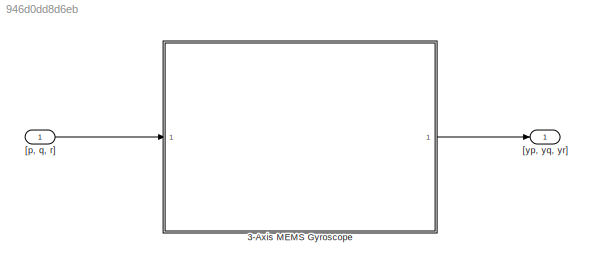
MODEL slx_946d0dd8d6eb
KIND model
CONFIG AbsTol = auto
CONFIG EnableMultiTasking = off
CONFIG FixedStep = auto
CONFIG MaxStep = auto
CONFIG MinStep = auto
CONFIG RelTol = 1e-3
CONFIG SampleTimeConstraint = Unconstrained
CONFIG Solver = VariableStepAuto
CONFIG SolverName = VariableStepAuto
CONFIG StartTime = 0.0
CONFIG StopTime = 10.0
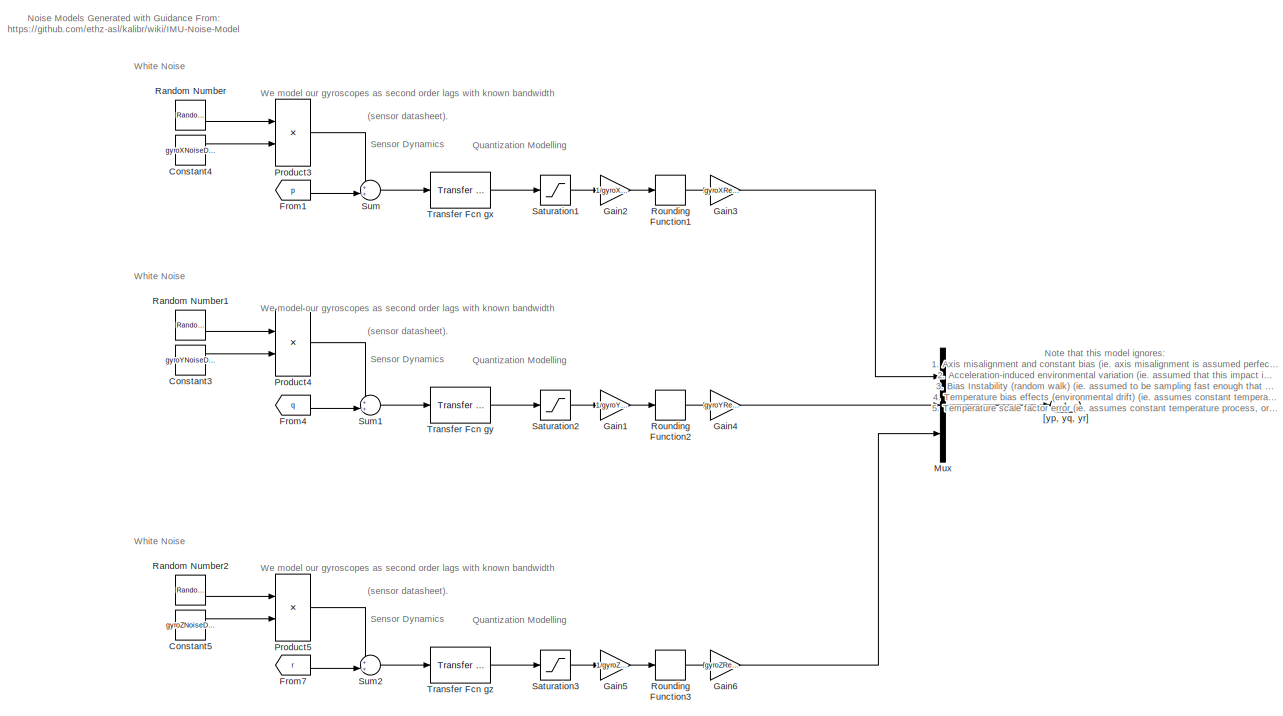
[diagram: 3-Axis MEMS Gyroscope - part 1/2, most of the canvas]
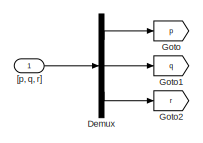
[diagram: 3-Axis MEMS Gyroscope - part 2/2, middle left region]
BLOCK [SubSystem] 3-Axis MEMS Gyroscope
  Ports = [1, 1]
  RequestExecContextInheritance = off
BLOCK [Constant] 3-Axis MEMS Gyroscope/Constant3
  Value = gyroYNoiseDensity*(1/sqrt(SampleTime))
BLOCK [Constant] 3-Axis MEMS Gyroscope/Constant4
  Value = gyroXNoiseDensity*(1/sqrt(SampleTime))
BLOCK [Constant] 3-Axis MEMS Gyroscope/Constant5
  Value = gyroZNoiseDensity*(1/sqrt(SampleTime))
BLOCK [Demux] 3-Axis MEMS Gyroscope/Demux
  DisplayOption = bar
  Outputs = 3
  Ports = [1, 3]
BLOCK [From] 3-Axis MEMS Gyroscope/From1
  GotoTag = p
BLOCK [From] 3-Axis MEMS Gyroscope/From4
  GotoTag = q
BLOCK [From] 3-Axis MEMS Gyroscope/From7
  GotoTag = r
BLOCK [Gain] 3-Axis MEMS Gyroscope/Gain1
  Gain = 1/gyroYResolution
  OutDataTypeStr = Inherit: Inherit via internal rule
  ParamDataTypeStr = Inherit: Inherit via internal rule
  SaturateOnIntegerOverflow = off
BLOCK [Gain] 3-Axis MEMS Gyroscope/Gain2
  Gain = 1/gyroXResolution
  OutDataTypeStr = Inherit: Inherit via internal rule
  ParamDataTypeStr = Inherit: Inherit via internal rule
  SaturateOnIntegerOverflow = off
BLOCK [Gain] 3-Axis MEMS Gyroscope/Gain3
  Gain = gyroXResolution
  OutDataTypeStr = Inherit: Inherit via internal rule
  ParamDataTypeStr = Inherit: Inherit via internal rule
  SaturateOnIntegerOverflow = off
BLOCK [Gain] 3-Axis MEMS Gyroscope/Gain4
  Gain = gyroYResolution
  OutDataTypeStr = Inherit: Inherit via internal rule
  ParamDataTypeStr = Inherit: Inherit via internal rule
  SaturateOnIntegerOverflow = off
BLOCK [Gain] 3-Axis MEMS Gyroscope/Gain5
  Gain = 1/gyroZResolution
  OutDataTypeStr = Inherit: Inherit via internal rule
  ParamDataTypeStr = Inherit: Inherit via internal rule
  SaturateOnIntegerOverflow = off
BLOCK [Gain] 3-Axis MEMS Gyroscope/Gain6
  Gain = gyroZResolution
  OutDataTypeStr = Inherit: Inherit via internal rule
  ParamDataTypeStr = Inherit: Inherit via internal rule
  SaturateOnIntegerOverflow = off
BLOCK [Goto] 3-Axis MEMS Gyroscope/Goto
  GotoTag = p
BLOCK [Goto] 3-Axis MEMS Gyroscope/Goto1
  GotoTag = q
BLOCK [Goto] 3-Axis MEMS Gyroscope/Goto2
  GotoTag = r
BLOCK [Mux] 3-Axis MEMS Gyroscope/Mux
  DisplayOption = bar
  Inputs = 3
  Ports = [3, 1]
BLOCK [Product] 3-Axis MEMS Gyroscope/Product3
  InputSameDT = off
  OutDataTypeStr = Inherit: Inherit via internal rule
  Ports = [2, 1]
  RndMeth = Floor
  SaturateOnIntegerOverflow = off
BLOCK [Product] 3-Axis MEMS Gyroscope/Product4
  InputSameDT = off
  OutDataTypeStr = Inherit: Inherit via internal rule
  Ports = [2, 1]
  RndMeth = Floor
  SaturateOnIntegerOverflow = off
BLOCK [Product] 3-Axis MEMS Gyroscope/Product5
  InputSameDT = off
  OutDataTypeStr = Inherit: Inherit via internal rule
  Ports = [2, 1]
  RndMeth = Floor
  SaturateOnIntegerOverflow = off
BLOCK [RandomNumber] 3-Axis MEMS Gyroscope/Random Number
  SampleTime = SampleTime
BLOCK [RandomNumber] 3-Axis MEMS Gyroscope/Random Number1
  SampleTime = SampleTime
BLOCK [RandomNumber] 3-Axis MEMS Gyroscope/Random Number2
  SampleTime = SampleTime
BLOCK [Rounding] 3-Axis MEMS Gyroscope/Rounding Function1
BLOCK [Rounding] 3-Axis MEMS Gyroscope/Rounding Function2
BLOCK [Rounding] 3-Axis MEMS Gyroscope/Rounding Function3
BLOCK [Saturate] 3-Axis MEMS Gyroscope/Saturation1
  InputPortMap = u0
  LowerLimit = gyroXLowerSaturation
  Ports = [1, 1]
  UpperLimit = gyroXUpperSaturation
BLOCK [Saturate] 3-Axis MEMS Gyroscope/Saturation2
  InputPortMap = u0
  LowerLimit = gyroYLowerSaturation
  Ports = [1, 1]
  UpperLimit = gyroYUpperSaturation
BLOCK [Saturate] 3-Axis MEMS Gyroscope/Saturation3
  InputPortMap = u0
  LowerLimit = gyroZLowerSaturation
  Ports = [1, 1]
  UpperLimit = gyroZUpperSaturation
BLOCK [Sum] 3-Axis MEMS Gyroscope/Sum
  IconShape = round
  InputSameDT = off
  Inputs = ++|
  OutDataTypeStr = Inherit: Inherit via internal rule
  Ports = [2, 1]
  SaturateOnIntegerOverflow = off
BLOCK [Sum] 3-Axis MEMS Gyroscope/Sum1
  IconShape = round
  InputSameDT = off
  Inputs = ++|
  OutDataTypeStr = Inherit: Inherit via internal rule
  Ports = [2, 1]
  SaturateOnIntegerOverflow = off
BLOCK [Sum] 3-Axis MEMS Gyroscope/Sum2
  IconShape = round
  InputSameDT = off
  Inputs = ++|
  OutDataTypeStr = Inherit: Inherit via internal rule
  Ports = [2, 1]
  SaturateOnIntegerOverflow = off
BLOCK [Reference] 3-Axis MEMS Gyroscope/Transfer Fcn gx  REF=simulink_extras/Additional
Linear/Transfer Fcn
(with initial outputs)
  Ports = [1, 1]
  SourceBlock = simulink_extras/Additional\nLinear/Transfer Fcn\n(with initial outputs)
  SourceProductBaseCode = SL
  SourceProductName = Simulink
  SourceType = Transfer Function with Initial Outputs
BLOCK [Reference] 3-Axis MEMS Gyroscope/Transfer Fcn gy  REF=simulink_extras/Additional
Linear/Transfer Fcn
(with initial outputs)
  Ports = [1, 1]
  SourceBlock = simulink_extras/Additional\nLinear/Transfer Fcn\n(with initial outputs)
  SourceProductBaseCode = SL
  SourceProductName = Simulink
  SourceType = Transfer Function with Initial Outputs
BLOCK [Reference] 3-Axis MEMS Gyroscope/Transfer Fcn gz  REF=simulink_extras/Additional
Linear/Transfer Fcn
(with initial outputs)
  Ports = [1, 1]
  SourceBlock = simulink_extras/Additional\nLinear/Transfer Fcn\n(with initial outputs)
  SourceProductBaseCode = SL
  SourceProductName = Simulink
  SourceType = Transfer Function with Initial Outputs
BLOCK [Inport] 3-Axis MEMS Gyroscope/[p, q, r]
  IconDisplay = Port number
BLOCK [Outport] 3-Axis MEMS Gyroscope/[yp, yq, yr]
  IconDisplay = Port number
BLOCK [Inport] [p, q, r]
  IconDisplay = Port number
BLOCK [Outport] [yp, yq, yr]
  IconDisplay = Port number
ANNOTATION 3-Axis MEMS Gyroscope: Noise Models Generated with Guidance From: https://github.com/ethz-asl/kalibr/wiki/IMU-Noise-Model
ANNOTATION 3-Axis MEMS Gyroscope: Note that this model ignores: 1. Axis misalignment and constant bias (ie. axis misalignment is assumed perfect, and constant bias removed at startup) 2. Acceleration-induced environmental variation (ie. assumed that this impact is low relative to measurement) 3. Bias Instability (random walk) (ie. assumed to be sampling fast enough that this isn't the dominant noise) 4. Temperature bias effects (e...<+361ch>
ANNOTATION 3-Axis MEMS Gyroscope: Quantization Modelling
ANNOTATION 3-Axis MEMS Gyroscope: Sensor Dynamics
ANNOTATION 3-Axis MEMS Gyroscope: We model our gyroscopes as second order lags with known bandwidth (sensor datasheet).
ANNOTATION 3-Axis MEMS Gyroscope: White Noise
LINE 3-Axis MEMS Gyroscope/Constant3:1 -> 3-Axis MEMS Gyroscope/Product4:2
LINE 3-Axis MEMS Gyroscope/Constant4:1 -> 3-Axis MEMS Gyroscope/Product3:2
LINE 3-Axis MEMS Gyroscope/Constant5:1 -> 3-Axis MEMS Gyroscope/Product5:2
LINE 3-Axis MEMS Gyroscope/Demux:1 -> 3-Axis MEMS Gyroscope/Goto:1
LINE 3-Axis MEMS Gyroscope/Demux:2 -> 3-Axis MEMS Gyroscope/Goto1:1
LINE 3-Axis MEMS Gyroscope/Demux:3 -> 3-Axis MEMS Gyroscope/Goto2:1
LINE 3-Axis MEMS Gyroscope/From1:1 -> 3-Axis MEMS Gyroscope/Sum:2
LINE 3-Axis MEMS Gyroscope/From4:1 -> 3-Axis MEMS Gyroscope/Sum1:2
LINE 3-Axis MEMS Gyroscope/From7:1 -> 3-Axis MEMS Gyroscope/Sum2:2
LINE 3-Axis MEMS Gyroscope/Gain1:1 -> 3-Axis MEMS Gyroscope/Rounding Function2:1
LINE 3-Axis MEMS Gyroscope/Gain2:1 -> 3-Axis MEMS Gyroscope/Rounding Function1:1
LINE 3-Axis MEMS Gyroscope/Gain3:1 -> 3-Axis MEMS Gyroscope/Mux:1
LINE 3-Axis MEMS Gyroscope/Gain4:1 -> 3-Axis MEMS Gyroscope/Mux:2
LINE 3-Axis MEMS Gyroscope/Gain5:1 -> 3-Axis MEMS Gyroscope/Rounding Function3:1
LINE 3-Axis MEMS Gyroscope/Gain6:1 -> 3-Axis MEMS Gyroscope/Mux:3
LINE 3-Axis MEMS Gyroscope/Mux:1 -> 3-Axis MEMS Gyroscope/[yp, yq, yr]:1
LINE 3-Axis MEMS Gyroscope/Product3:1 -> 3-Axis MEMS Gyroscope/Sum:1
LINE 3-Axis MEMS Gyroscope/Product4:1 -> 3-Axis MEMS Gyroscope/Sum1:1
LINE 3-Axis MEMS Gyroscope/Product5:1 -> 3-Axis MEMS Gyroscope/Sum2:1
LINE 3-Axis MEMS Gyroscope/Random Number1:1 -> 3-Axis MEMS Gyroscope/Product4:1
LINE 3-Axis MEMS Gyroscope/Random Number2:1 -> 3-Axis MEMS Gyroscope/Product5:1
LINE 3-Axis MEMS Gyroscope/Random Number:1 -> 3-Axis MEMS Gyroscope/Product3:1
LINE 3-Axis MEMS Gyroscope/Rounding Function1:1 -> 3-Axis MEMS Gyroscope/Gain3:1
LINE 3-Axis MEMS Gyroscope/Rounding Function2:1 -> 3-Axis MEMS Gyroscope/Gain4:1
LINE 3-Axis MEMS Gyroscope/Rounding Function3:1 -> 3-Axis MEMS Gyroscope/Gain6:1
LINE 3-Axis MEMS Gyroscope/Saturation1:1 -> 3-Axis MEMS Gyroscope/Gain2:1
LINE 3-Axis MEMS Gyroscope/Saturation2:1 -> 3-Axis MEMS Gyroscope/Gain1:1
LINE 3-Axis MEMS Gyroscope/Saturation3:1 -> 3-Axis MEMS Gyroscope/Gain5:1
LINE 3-Axis MEMS Gyroscope/Sum1:1 -> 3-Axis MEMS Gyroscope/Transfer Fcn gy:1
LINE 3-Axis MEMS Gyroscope/Sum2:1 -> 3-Axis MEMS Gyroscope/Transfer Fcn gz:1
LINE 3-Axis MEMS Gyroscope/Sum:1 -> 3-Axis MEMS Gyroscope/Transfer Fcn gx:1
LINE 3-Axis MEMS Gyroscope/Transfer Fcn gx:1 -> 3-Axis MEMS Gyroscope/Saturation1:1
LINE 3-Axis MEMS Gyroscope/Transfer Fcn gy:1 -> 3-Axis MEMS Gyroscope/Saturation2:1
LINE 3-Axis MEMS Gyroscope/Transfer Fcn gz:1 -> 3-Axis MEMS Gyroscope/Saturation3:1
LINE 3-Axis MEMS Gyroscope/[p, q, r]:1 -> 3-Axis MEMS Gyroscope/Demux:1
LINE 3-Axis MEMS Gyroscope:1 -> [yp, yq, yr]:1
LINE [p, q, r]:1 -> 3-Axis MEMS Gyroscope:1
